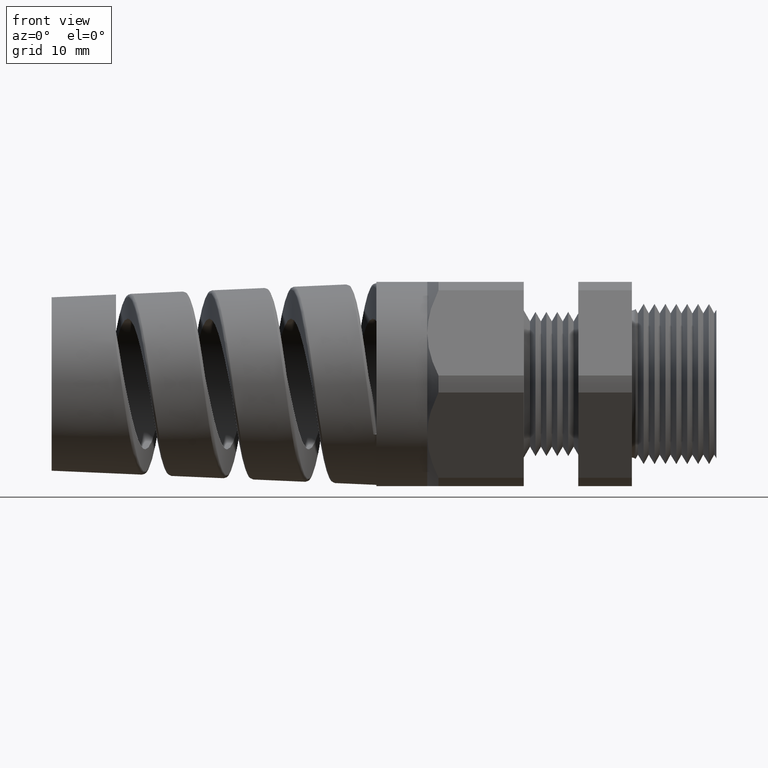
[diagram: clean part render]
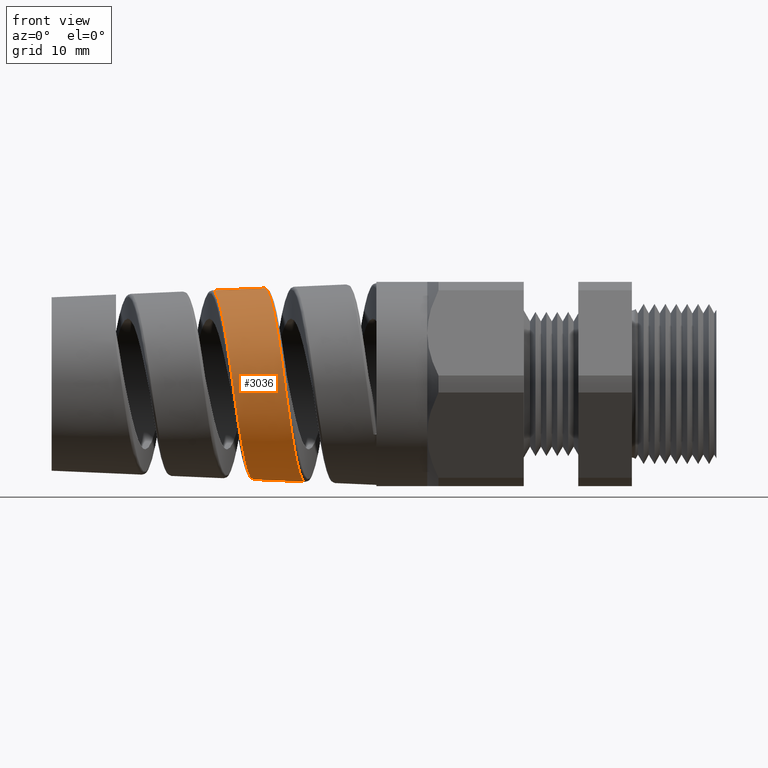
[diagram: same view with one face highlighted and labeled with its STEP entity id]
A machine part, front view. The second image highlights one B-rep face of the part: STEP entity #3036.
In plain terms, the highlighted conical surface has half-angle 2.5 deg.
Its self-contained STEP definition (entity closure, byte-faithful):
#59 = VERTEX_POINT ( 'NONE', #578 ) ;
#578 = CARTESIAN_POINT ( 'NONE',  ( -1.699919983508361600, -5.512431167977241600E-017, -0.3505533655667060200 ) ) ;
#1937 = DIRECTION ( 'NONE',  ( 0.0000000000000000000, 0.0000000000000000000, -1.000000000000000000 ) ) ;
#1938 = DIRECTION ( 'NONE',  ( 1.000000000000000000, 0.0000000000000000000, 0.0000000000000000000 ) ) ;
#1939 = CARTESIAN_POINT ( 'NONE',  ( -1.139999999999999900, 0.0000000000000000000, 0.0000000000000000000 ) ) ;
#1940 = AXIS2_PLACEMENT_3D ( 'NONE', #1939, #1938, #1937 ) ;
#1941 = CONICAL_SURFACE ( 'NONE', #1940, 0.3749999999999998900, 0.04363323129985862600 ) ;
#1942 = FACE_OUTER_BOUND ( 'NONE', #3132, .T. ) ;
#2049 = CARTESIAN_POINT ( 'NONE',  ( -1.586309318994342900, -0.3556633006574413900, 0.02096938786474715500 ) ) ;
#2050 = CARTESIAN_POINT ( 'NONE',  ( -1.581605278504172500, -0.3556321597589079400, -0.01408429697739640600 ) ) ;
#2051 = CARTESIAN_POINT ( 'NONE',  ( -1.580024638812552300, -0.3550381724003581800, -0.02586243879037940900 ) ) ;
#2052 = CARTESIAN_POINT ( 'NONE',  ( -1.576897254233268200, -0.3527207582720601800, -0.04905320368089107600 ) ) ;
#2053 = CARTESIAN_POINT ( 'NONE',  ( -1.575341910930594800, -0.3510000160359547600, -0.06053011543964957600 ) ) ;
#2054 = CARTESIAN_POINT ( 'NONE',  ( -1.570680446691006700, -0.3441824595678553700, -0.09460916745486520900 ) ) ;
#2055 = CARTESIAN_POINT ( 'NONE',  ( -1.567567743385964700, -0.3374093564219771100, -0.1169505982083384000 ) ) ;
#2056 = CARTESIAN_POINT ( 'NONE',  ( -1.561287676049552900, -0.3194230647990478600, -0.1602713481085171200 ) ) ;
#2057 = CARTESIAN_POINT ( 'NONE',  ( -1.558198402001107300, -0.3084493591995971500, -0.1807227546226457800 ) ) ;
#2058 = CARTESIAN_POINT ( 'NONE',  ( -1.553548609610870400, -0.2891276812057952400, -0.2096393148549388600 ) ) ;
#2059 = CARTESIAN_POINT ( 'NONE',  ( -1.551996112525379600, -0.2822068670778670200, -0.2189826659504793800 ) ) ;
#2060 = CARTESIAN_POINT ( 'NONE',  ( -1.548870638705387900, -0.2673820778720165700, -0.2370620242764663300 ) ) ;
#2061 = CARTESIAN_POINT ( 'NONE',  ( -1.547296585200491600, -0.2594666640117073200, -0.2457982543588980200 ) ) ;
#2062 = CARTESIAN_POINT ( 'NONE',  ( -1.542625055181262800, -0.2347606789774069900, -0.2705181210798588400 ) ) ;
#2063 = CARTESIAN_POINT ( 'NONE',  ( -1.539544819292086200, -0.2168612298681865900, -0.2852332265416534500 ) ) ;
#2064 = CARTESIAN_POINT ( 'NONE',  ( -1.533337421350561700, -0.1782355930119540200, -0.3111474624135247000 ) ) ;
#2065 = CARTESIAN_POINT ( 'NONE',  ( -1.530194281710143500, -0.1573697872736157800, -0.3223528600216930600 ) ) ;
#2066 = CARTESIAN_POINT ( 'NONE',  ( -1.524010249492366400, -0.1145330458778767600, -0.3402237080554316700 ) ) ;
#2067 = CARTESIAN_POINT ( 'NONE',  ( -1.520937150236728800, -0.09237137220686605900, -0.3470473369240355500 ) ) ;
#2068 = CARTESIAN_POINT ( 'NONE',  ( -1.516266247149606700, -0.05800127836744176800, -0.3540428220457102500 ) ) ;
#2069 = CARTESIAN_POINT ( 'NONE',  ( -1.514698273681235800, -0.04634848275764320200, -0.3558235652049890900 ) ) ;
#2070 = CARTESIAN_POINT ( 'NONE',  ( -1.511596111988228600, -0.02317214140110665900, -0.3582161532889112100 ) ) ;
#2071 = CARTESIAN_POINT ( 'NONE',  ( -1.510053264790669500, -0.01158510615017282000, -0.3588431255328657900 ) ) ;
#2072 = CARTESIAN_POINT ( 'NONE',  ( -1.508512430417948000, 1.404479593870249900E-016, -0.3589103998144446700 ) ) ;
#2074 = B_SPLINE_CURVE_WITH_KNOTS ( 'NONE', 3,
 ( #2072, #2071, #2070, #2069, #2068, #2067, #2066, #2065, #2064, #2063, #2062, #2061, #2060, #2059, #2058, #2057, #2056, #2055, #2054, #2053, #2052, #2051, #2050, #2049, #2127, #2126, #2125, #2124, #2123, #2122, #2121, #2120, #2119, #2118, #2117, #2116, #2115, #2114, #2113, #2112, #2111, #2110, #2109, #2108 ),
 .UNSPECIFIED., .F., .F.,
 ( 4, 2, 2, 2, 2, 2, 2, 2, 2, 2, 2, 2, 2, 2, 2, 2, 2, 2, 2, 2, 2, 4 ),
 ( 0.04885554481322940800, 0.04975002779144948500, 0.05064451076966956100, 0.05243347672610970700, 0.05422244268254986000, 0.05601140863899000500, 0.05690589161721007500, 0.05780037459543015100, 0.05958934055187029000, 0.06137830650831042900, 0.06227278948653049200, 0.06316727246475056800, 0.06495623842119069300, 0.06674520437763083200, 0.06853417033407097100, 0.06942865331229103300, 0.07032313629051109600, 0.07211210224695123500, 0.07390106820339136000, 0.07479555118161143600, 0.07569003415983149900, 0.07747900011627162400 ),
 .UNSPECIFIED. ) ;
#2086 = CARTESIAN_POINT ( 'NONE',  ( -1.780852175233230300, -0.3450981811915821400, 0.04294270763917413400 ) ) ;
#2087 = CARTESIAN_POINT ( 'NONE',  ( -1.787094230545622600, -0.3363087584255772300, 0.08743097097183714900 ) ) ;
#2088 = CARTESIAN_POINT ( 'NONE',  ( -1.790264614012462100, -0.3296133966942679800, 0.1095783111820875400 ) ) ;
#2089 = CARTESIAN_POINT ( 'NONE',  ( -1.796517991949024800, -0.3122644528083881000, 0.1515061567193677600 ) ) ;
#2090 = CARTESIAN_POINT ( 'NONE',  ( -1.799625189002780100, -0.3016136403510741300, 0.1714723987944283000 ) ) ;
#2091 = CARTESIAN_POINT ( 'NONE',  ( -1.804343785446853400, -0.2826377716022780400, 0.1998939271584930000 ) ) ;
#2092 = CARTESIAN_POINT ( 'NONE',  ( -1.805932780995883800, -0.2757731664098488400, 0.2091481022352676100 ) ) ;
#2093 = CARTESIAN_POINT ( 'NONE',  ( -1.809080077732060400, -0.2613051038317576500, 0.2267561681794310900 ) ) ;
#2094 = CARTESIAN_POINT ( 'NONE',  ( -1.810644988160453200, -0.2536801132383215100, 0.2351511011353172600 ) ) ;
#2095 = CARTESIAN_POINT ( 'NONE',  ( -1.815334845271515200, -0.2296582714384922700, 0.2591316334911937800 ) ) ;
#2096 = CARTESIAN_POINT ( 'NONE',  ( -1.818456770586165400, -0.2121094932566591800, 0.2735355437632384100 ) ) ;
#2097 = CARTESIAN_POINT ( 'NONE',  ( -1.824801026797968400, -0.1739157288910861400, 0.2989551639365410400 ) ) ;
#2098 = CARTESIAN_POINT ( 'NONE',  ( -1.827924017729870300, -0.1538785285706822900, 0.3095708415158500700 ) ) ;
#2099 = CARTESIAN_POINT ( 'NONE',  ( -1.832627552551172400, -0.1224778938009673100, 0.3224687981787054400 ) ) ;
#2100 = CARTESIAN_POINT ( 'NONE',  ( -1.834198363892931300, -0.1117852121065269800, 0.3262601919500035500 ) ) ;
#2101 = CARTESIAN_POINT ( 'NONE',  ( -1.837359845237159300, -0.08993933844956374100, 0.3328023789052793600 ) ) ;
#2102 = CARTESIAN_POINT ( 'NONE',  ( -1.838954674163519200, -0.07875310689152716100, 0.3355533361112129100 ) ) ;
#2103 = CARTESIAN_POINT ( 'NONE',  ( -1.843690655838870400, -0.04522771009143961000, 0.3420509274931622400 ) ) ;
#2104 = CARTESIAN_POINT ( 'NONE',  ( -1.846814144336956100, -0.02269847794392985300, 0.3441398279972156000 ) ) ;
#2105 = CARTESIAN_POINT ( 'NONE',  ( -1.849964216772862300, 6.184773478673362200E-013, 0.3440022928643932100 ) ) ;
#2106 = B_SPLINE_CURVE_WITH_KNOTS ( 'NONE', 3,
 ( #2105, #2104, #2103, #2102, #2101, #2100, #2099, #2098, #2097, #2096, #2095, #2094, #2093, #2092, #2091, #2090, #2089, #2088, #2087, #2086, #2162, #2161, #2160, #2159, #2158, #2157, #2156, #2155, #2154, #2153, #2152, #2151, #2150, #2149, #2148, #2147, #2146, #2145, #2144, #2143, #2142, #2141, #2140, #2139 ),
 .UNSPECIFIED., .F., .F.,
 ( 4, 2, 2, 2, 2, 2, 2, 2, 2, 2, 2, 2, 2, 2, 2, 2, 2, 2, 2, 2, 2, 4 ),
 ( 0.06436547305654889700, 0.06612711896850012600, 0.06700794192447574700, 0.06788876488045136900, 0.06965041079240261200, 0.07141205670435384100, 0.07229287966032944800, 0.07317370261630507000, 0.07493534852825629900, 0.07669699444020752800, 0.07845864035215874300, 0.07933946330813436400, 0.08022028626410997200, 0.08198193217606120100, 0.08374357808801241600, 0.08462440104398803700, 0.08550522399996365900, 0.08726686991191487400, 0.08902851582386611700, 0.09079016173581734600, 0.09167098469179296700, 0.09255180764776857500 ),
 .UNSPECIFIED. ) ;
#2108 = CARTESIAN_POINT ( 'NONE',  ( -1.658470095931463800, 4.289574218763914200E-013, 0.3523631067417653000 ) ) ;
#2109 = CARTESIAN_POINT ( 'NONE',  ( -1.655322450045642700, -0.02323812348165149600, 0.3525005359291107400 ) ) ;
#2110 = CARTESIAN_POINT ( 'NONE',  ( -1.652202439690508800, -0.04631133588600950400, 0.3503597753089317500 ) ) ;
#2111 = CARTESIAN_POINT ( 'NONE',  ( -1.647470307860148000, -0.08065859098850364200, 0.3436984740643617700 ) ) ;
#2112 = CARTESIAN_POINT ( 'NONE',  ( -1.645876647074291800, -0.09211585363875561500, 0.3408789136453164200 ) ) ;
#2113 = CARTESIAN_POINT ( 'NONE',  ( -1.642720032792403400, -0.1144765674370654800, 0.3341798560965517100 ) ) ;
#2114 = CARTESIAN_POINT ( 'NONE',  ( -1.641151270667204000, -0.1254234163392192200, 0.3302974862498999600 ) ) ;
#2115 = CARTESIAN_POINT ( 'NONE',  ( -1.636451151177199700, -0.1575761385630355900, 0.3170882219947666600 ) ) ;
#2116 = CARTESIAN_POINT ( 'NONE',  ( -1.633326522295557300, -0.1781105919451750100, 0.3062078991050957700 ) ) ;
#2117 = CARTESIAN_POINT ( 'NONE',  ( -1.626982597030959500, -0.2172286937193211000, 0.2801682284345949300 ) ) ;
#2118 = CARTESIAN_POINT ( 'NONE',  ( -1.623865732668258800, -0.2351788929446354300, 0.2654331945170403400 ) ) ;
#2119 = CARTESIAN_POINT ( 'NONE',  ( -1.619180506530197400, -0.2597815922049749900, 0.2408721756418377400 ) ) ;
#2120 = CARTESIAN_POINT ( 'NONE',  ( -1.617617160005113900, -0.2675925565342265300, 0.2322724109671842900 ) ) ;
#2121 = CARTESIAN_POINT ( 'NONE',  ( -1.614471441667515200, -0.2824159312075860100, 0.2142306945174272700 ) ) ;
#2122 = CARTESIAN_POINT ( 'NONE',  ( -1.612884048581709100, -0.2894442583075296800, 0.2047543233528939200 ) ) ;
#2123 = CARTESIAN_POINT ( 'NONE',  ( -1.608171960231569200, -0.3088671997087740800, 0.1756618140988987500 ) ) ;
#2124 = CARTESIAN_POINT ( 'NONE',  ( -1.605065015960233300, -0.3197750633137334500, 0.1552175059612052900 ) ) ;
#2125 = CARTESIAN_POINT ( 'NONE',  ( -1.598812023161401400, -0.3375478591184769000, 0.1122664428444216800 ) ) ;
#2126 = CARTESIAN_POINT ( 'NONE',  ( -1.595641561787001700, -0.3444026755478338300, 0.08958853271600068800 ) ) ;
#2127 = CARTESIAN_POINT ( 'NONE',  ( -1.589405531443923500, -0.3534021242723309200, 0.04404192386692204500 ) ) ;
#2139 = CARTESIAN_POINT ( 'NONE',  ( -1.699919983508361600, -5.512431167977241600E-017, -0.3505533655667060200 ) ) ;
#2140 = CARTESIAN_POINT ( 'NONE',  ( -1.701461097188665900, -0.01131372896856946500, -0.3504860790902948300 ) ) ;
#2141 = CARTESIAN_POINT ( 'NONE',  ( -1.703004059428151300, -0.02263219376243965100, -0.3498722874492756200 ) ) ;
#2142 = CARTESIAN_POINT ( 'NONE',  ( -1.706108267878038800, -0.04527678616892877300, -0.3475311185447839100 ) ) ;
#2143 = CARTESIAN_POINT ( 'NONE',  ( -1.707677844086169500, -0.05666228302815999600, -0.3457887253097034500 ) ) ;
#2144 = CARTESIAN_POINT ( 'NONE',  ( -1.712348522165486600, -0.09019996199738505900, -0.3389573670524780300 ) ) ;
#2145 = CARTESIAN_POINT ( 'NONE',  ( -1.715423613930600300, -0.1118366896336324300, -0.3322949763719417200 ) ) ;
#2146 = CARTESIAN_POINT ( 'NONE',  ( -1.721614567190291400, -0.1536777492302872900, -0.3148356296716117700 ) ) ;
#2147 = CARTESIAN_POINT ( 'NONE',  ( -1.724759189667805600, -0.1740570749842264300, -0.3038880119664288400 ) ) ;
#2148 = CARTESIAN_POINT ( 'NONE',  ( -1.730963778612220300, -0.2117579978545729200, -0.2785912272942247000 ) ) ;
#2149 = CARTESIAN_POINT ( 'NONE',  ( -1.734044091084729700, -0.2292385794164263900, -0.2642218062009359400 ) ) ;
#2150 = CARTESIAN_POINT ( 'NONE',  ( -1.738719671233374300, -0.2533755826825344600, -0.2400691449791186000 ) ) ;
#2151 = CARTESIAN_POINT ( 'NONE',  ( -1.740295727153764500, -0.2611082056708372600, -0.2315328746910374200 ) ) ;
#2152 = CARTESIAN_POINT ( 'NONE',  ( -1.743421688673586000, -0.2755743679147537600, -0.2138890973210265900 ) ) ;
#2153 = CARTESIAN_POINT ( 'NONE',  ( -1.744974540732417500, -0.2823298270291141900, -0.2047689713516268300 ) ) ;
#2154 = CARTESIAN_POINT ( 'NONE',  ( -1.749628045000245900, -0.3011939913509470400, -0.1765370239335715100 ) ) ;
#2155 = CARTESIAN_POINT ( 'NONE',  ( -1.752721129191742600, -0.3119140686442243800, -0.1565616611672039600 ) ) ;
#2156 = CARTESIAN_POINT ( 'NONE',  ( -1.759007312844634600, -0.3294890821190153400, -0.1142269638278668500 ) ) ;
#2157 = CARTESIAN_POINT ( 'NONE',  ( -1.762114959579737000, -0.3360903295641575200, -0.09244681901896623100 ) ) ;
#2158 = CARTESIAN_POINT ( 'NONE',  ( -1.766777213261919900, -0.3427490271133863400, -0.05916676674131363800 ) ) ;
#2159 = CARTESIAN_POINT ( 'NONE',  ( -1.768333385001131400, -0.3444301963131306000, -0.04795656162904327800 ) ) ;
#2160 = CARTESIAN_POINT ( 'NONE',  ( -1.771464295447774200, -0.3466942559481046000, -0.02529980058592877500 ) ) ;
#2161 = CARTESIAN_POINT ( 'NONE',  ( -1.773047115958138500, -0.3472738262641124100, -0.01379433324862770200 ) ) ;
#2162 = CARTESIAN_POINT ( 'NONE',  ( -1.777752225111550300, -0.3473039235710843600, 0.02041563980606384700 ) ) ;
#2706 = CARTESIAN_POINT ( 'NONE',  ( -1.658470095931463800, 4.289574218763914200E-013, 0.3523631067417653000 ) ) ;
#3036 = ADVANCED_FACE ( 'NONE', ( #1942 ), #1941, .T. ) ;
#3123 = EDGE_CURVE ( 'NONE', #7345, #7301, #2074, .T. ) ;
#3124 = EDGE_CURVE ( 'NONE', #7480, #59, #2106, .T. ) ;
#3126 = ORIENTED_EDGE ( 'NONE', *, *, #3124, .T. ) ;
#3127 = ORIENTED_EDGE ( 'NONE', *, *, #3123, .T. ) ;
#3130 = ORIENTED_EDGE ( 'NONE', *, *, #7470, .F. ) ;
#3131 = ORIENTED_EDGE ( 'NONE', *, *, #7340, .T. ) ;
#3132 = EDGE_LOOP ( 'NONE', ( #3130, #3126, #3131, #3127 ) ) ;
#3378 = CARTESIAN_POINT ( 'NONE',  ( -1.508512430417948000, 1.404479593870249900E-016, -0.3589103998144446700 ) ) ;
#3381 = DIRECTION ( 'NONE',  ( 0.9990482215818576900, 0.0000000000000000000, -0.04361938736533638900 ) ) ;
#3382 = VECTOR ( 'NONE', #3381, 39.37007874015748100 ) ;
#3383 = CARTESIAN_POINT ( 'NONE',  ( -1.139999999999999900, 0.0000000000000000000, -0.3749999999999998900 ) ) ;
#3384 = LINE ( 'NONE', #3383, #3382 ) ;
#3817 = CARTESIAN_POINT ( 'NONE',  ( -1.849964216772862300, 6.184773478673362200E-013, 0.3440022928643932100 ) ) ;
#3820 = DIRECTION ( 'NONE',  ( 0.9990482215818576900, 5.341834311772771000E-018, 0.04361938736533638900 ) ) ;
#3821 = VECTOR ( 'NONE', #3820, 39.37007874015748100 ) ;
#3822 = CARTESIAN_POINT ( 'NONE',  ( -1.139999999999999900, 4.592425496802573000E-017, 0.3749999999999998900 ) ) ;
#3823 = LINE ( 'NONE', #3822, #3821 ) ;
#7301 = VERTEX_POINT ( 'NONE', #2706 ) ;
#7340 = EDGE_CURVE ( 'NONE', #59, #7345, #3384, .T. ) ;
#7345 = VERTEX_POINT ( 'NONE', #3378 ) ;
#7470 = EDGE_CURVE ( 'NONE', #7480, #7301, #3823, .T. ) ;
#7480 = VERTEX_POINT ( 'NONE', #3817 ) ;